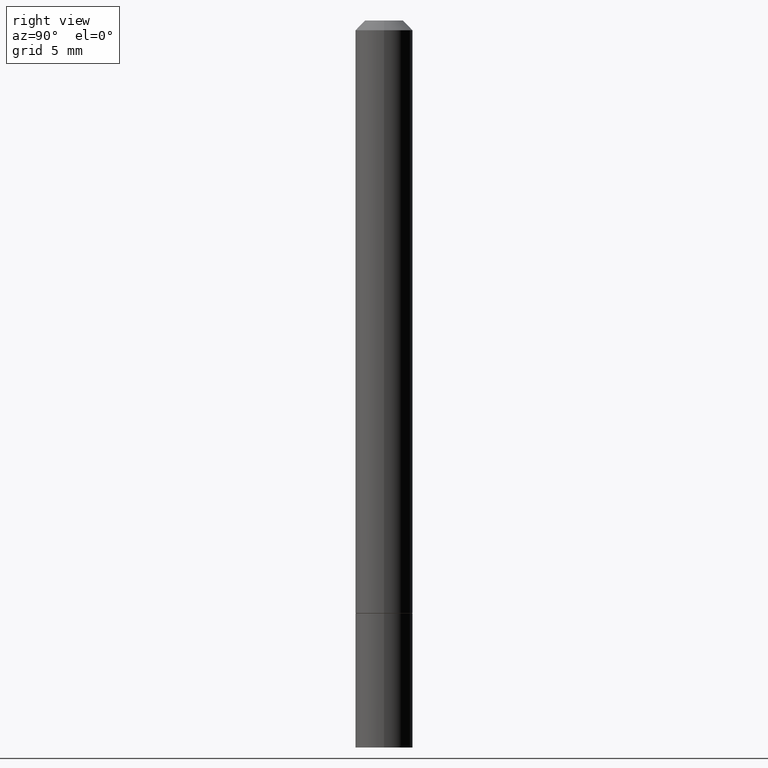
[diagram: clean part render]
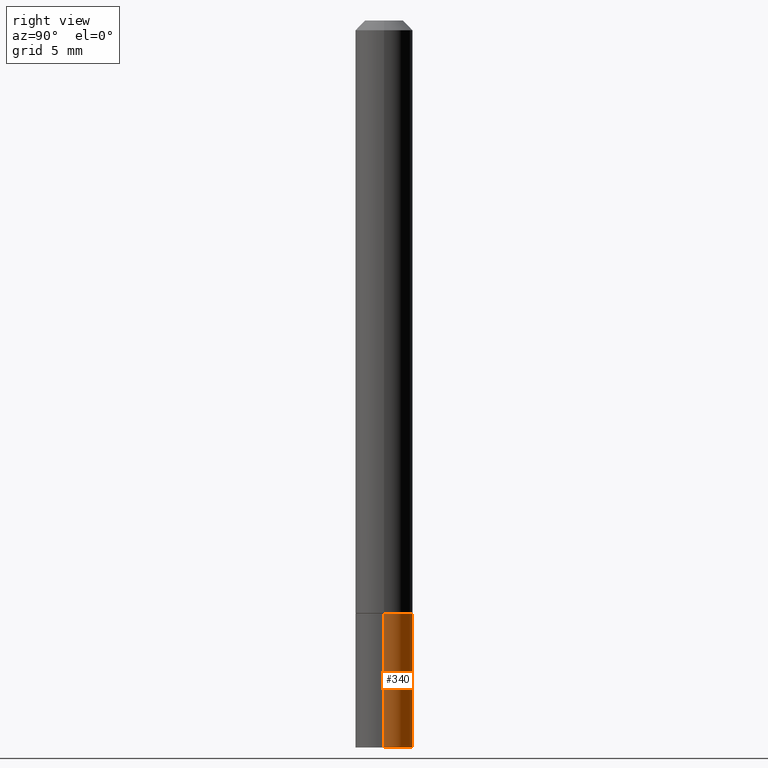
[diagram: same view with one face highlighted and labeled with its STEP entity id]
A machine part, right view. The second image highlights one B-rep face of the part: STEP entity #340.
In plain terms, the highlighted cylindrical surface (edge-blend (fillet) strip) has radius 1.4999 mm, axis along (-0, 0, 1).
Its self-contained STEP definition (entity closure, byte-faithful):
#6 = CARTESIAN_POINT ( 'NONE',  ( 3.658665880933582389E-29, -5.223605231043229660E-15, -1.496099999999999985 ) ) ;
#22 = CARTESIAN_POINT ( 'NONE',  ( -0.05905000000000001914, -4.322903617084304851E-15, -1.220499999999999696 ) ) ;
#29 = CARTESIAN_POINT ( 'NONE',  ( 2.984694677948958351E-29, -4.261352974058058239E-15, -1.220499999999999696 ) ) ;
#32 = CYLINDRICAL_SURFACE ( 'NONE', #229, 0.05905000000000001914 ) ;
#38 = EDGE_CURVE ( 'NONE', #360, #266, #365, .T. ) ;
#67 = DIRECTION ( 'NONE',  ( 1.000000000000000000, -6.982962677686266711E-15, 4.876176775795935793E-29 ) ) ;
#71 = VERTEX_POINT ( 'NONE', #22 ) ;
#92 = CARTESIAN_POINT ( 'NONE',  ( 0.05905000000000001914, -5.635949177160603791E-15, -1.496099999999999985 ) ) ;
#113 = LINE ( 'NONE', #341, #242 ) ;
#128 = ORIENTED_EDGE ( 'NONE', *, *, #38, .F. ) ;
#144 = DIRECTION ( 'NONE',  ( -2.445468806185136877E-29, 3.491481338843145188E-15, 1.000000000000000000 ) ) ;
#160 = VERTEX_POINT ( 'NONE', #169 ) ;
#169 = CARTESIAN_POINT ( 'NONE',  ( -0.05905000000000001914, -4.322903617084304851E-15, -1.496099999999999985 ) ) ;
#177 = CARTESIAN_POINT ( 'NONE',  ( 0.05905000000000001914, -4.673696920175432370E-15, -1.220499999999999696 ) ) ;
#178 = AXIS2_PLACEMENT_3D ( 'NONE', #29, #345, #200 ) ;
#185 = ORIENTED_EDGE ( 'NONE', *, *, #349, .F. ) ;
#200 = DIRECTION ( 'NONE',  ( 1.000000000000000000, -6.982962677686270655E-15, 0.000000000000000000 ) ) ;
#209 = VECTOR ( 'NONE', #275, 39.37007874015748143 ) ;
#229 = AXIS2_PLACEMENT_3D ( 'NONE', #316, #251, #67 ) ;
#233 = EDGE_LOOP ( 'NONE', ( #354, #356, #185, #128 ) ) ;
#242 = VECTOR ( 'NONE', #144, 39.37007874015748143 ) ;
#245 = EDGE_CURVE ( 'NONE', #360, #160, #273, .T. ) ;
#251 = DIRECTION ( 'NONE',  ( -2.445468806185136597E-29, 3.491481338843145583E-15, 1.000000000000000000 ) ) ;
#266 = VERTEX_POINT ( 'NONE', #177 ) ;
#273 = CIRCLE ( 'NONE', #319, 0.05905000000000001914 ) ;
#275 = DIRECTION ( 'NONE',  ( -2.445468806185136877E-29, 3.491481338843145188E-15, 1.000000000000000000 ) ) ;
#280 = FACE_OUTER_BOUND ( 'NONE', #233, .T. ) ;
#285 = DIRECTION ( 'NONE',  ( -2.445468806185136597E-29, 3.491481338843145583E-15, 1.000000000000000000 ) ) ;
#305 = EDGE_CURVE ( 'NONE', #160, #71, #113, .T. ) ;
#308 = DIRECTION ( 'NONE',  ( 1.000000000000000000, -6.982962677686270655E-15, 0.000000000000000000 ) ) ;
#310 = CIRCLE ( 'NONE', #178, 0.05905000000000001914 ) ;
#316 = CARTESIAN_POINT ( 'NONE',  ( 0.000000000000000000, 0.000000000000000000, 0.000000000000000000 ) ) ;
#319 = AXIS2_PLACEMENT_3D ( 'NONE', #6, #285, #308 ) ;
#338 = CARTESIAN_POINT ( 'NONE',  ( 0.05905000000000001914, -4.123439461173741806E-16, 2.879382386107500921E-30 ) ) ;
#340 = ADVANCED_FACE ( 'NONE', ( #280 ), #32, .T. ) ;
#341 = CARTESIAN_POINT ( 'NONE',  ( -0.05905000000000001914, 4.195754854663392958E-16, -2.904631170795522943E-30 ) ) ;
#345 = DIRECTION ( 'NONE',  ( -2.445468806185136597E-29, 3.491481338843145583E-15, 1.000000000000000000 ) ) ;
#349 = EDGE_CURVE ( 'NONE', #266, #71, #310, .T. ) ;
#354 = ORIENTED_EDGE ( 'NONE', *, *, #245, .T. ) ;
#356 = ORIENTED_EDGE ( 'NONE', *, *, #305, .T. ) ;
#360 = VERTEX_POINT ( 'NONE', #92 ) ;
#365 = LINE ( 'NONE', #338, #209 ) ;